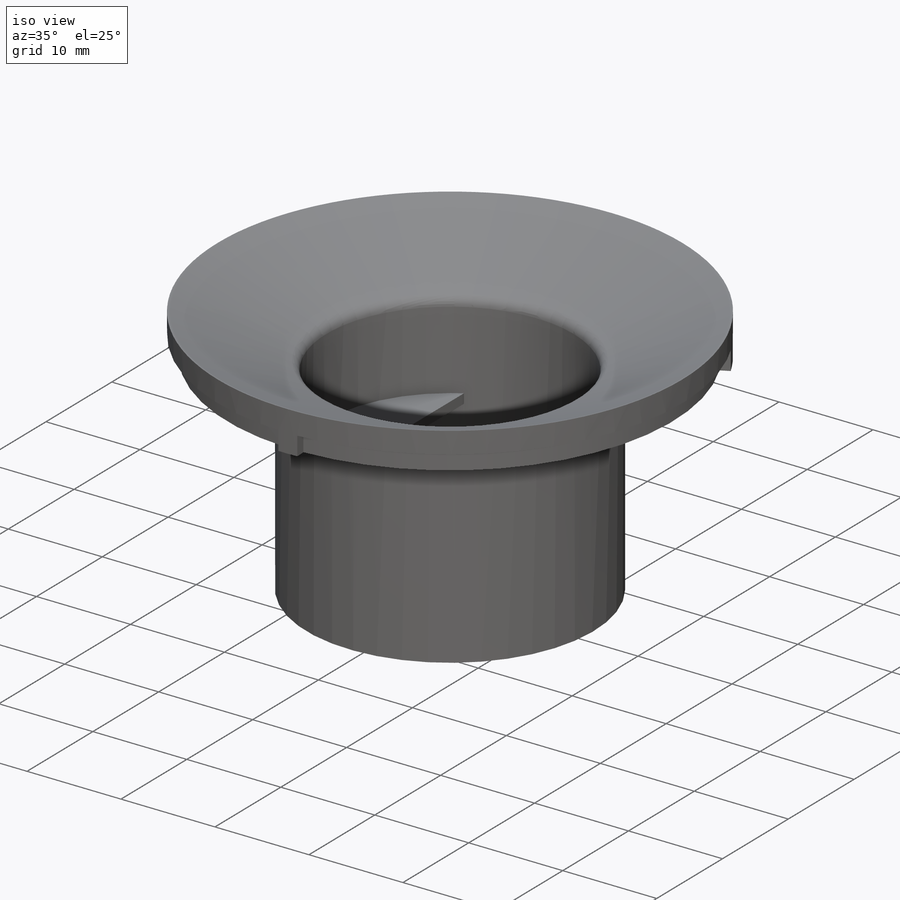
[diagram: iso view]
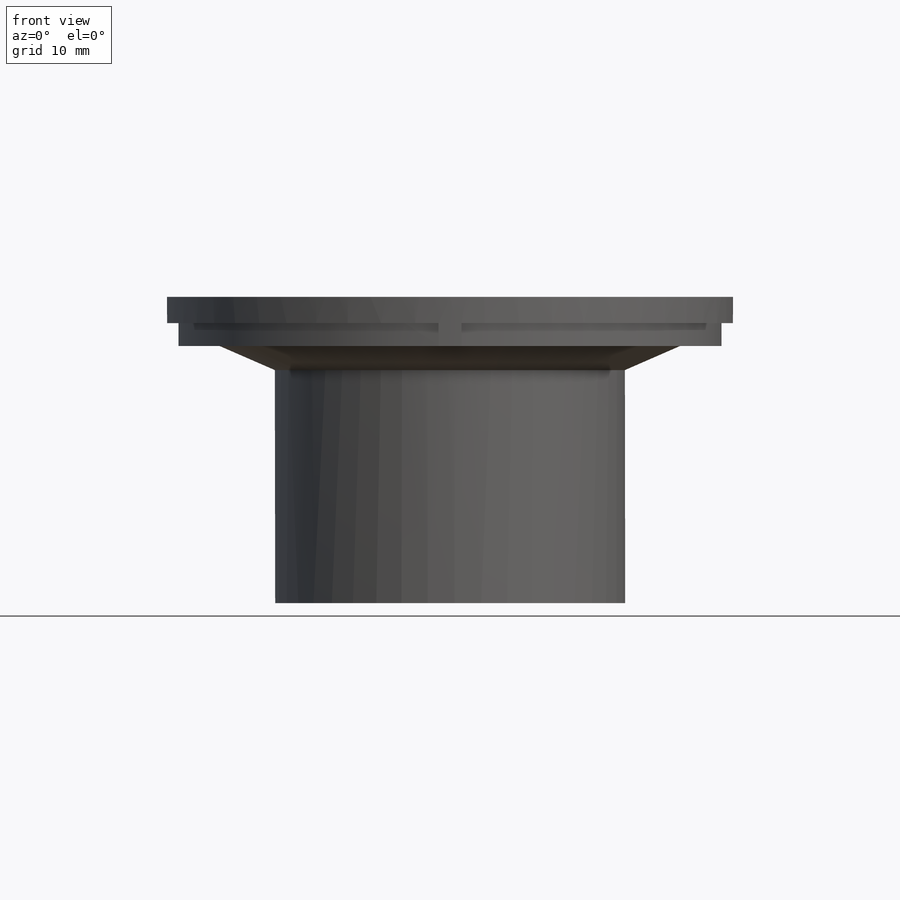
[diagram: front view]
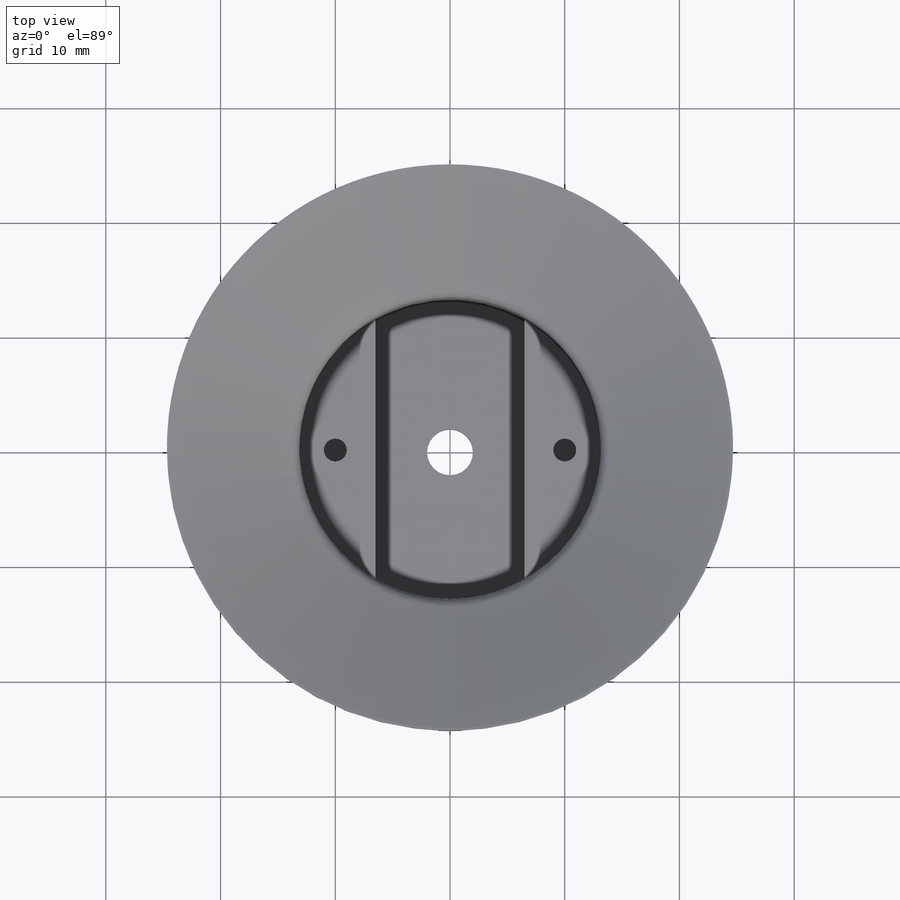
[diagram: top view]
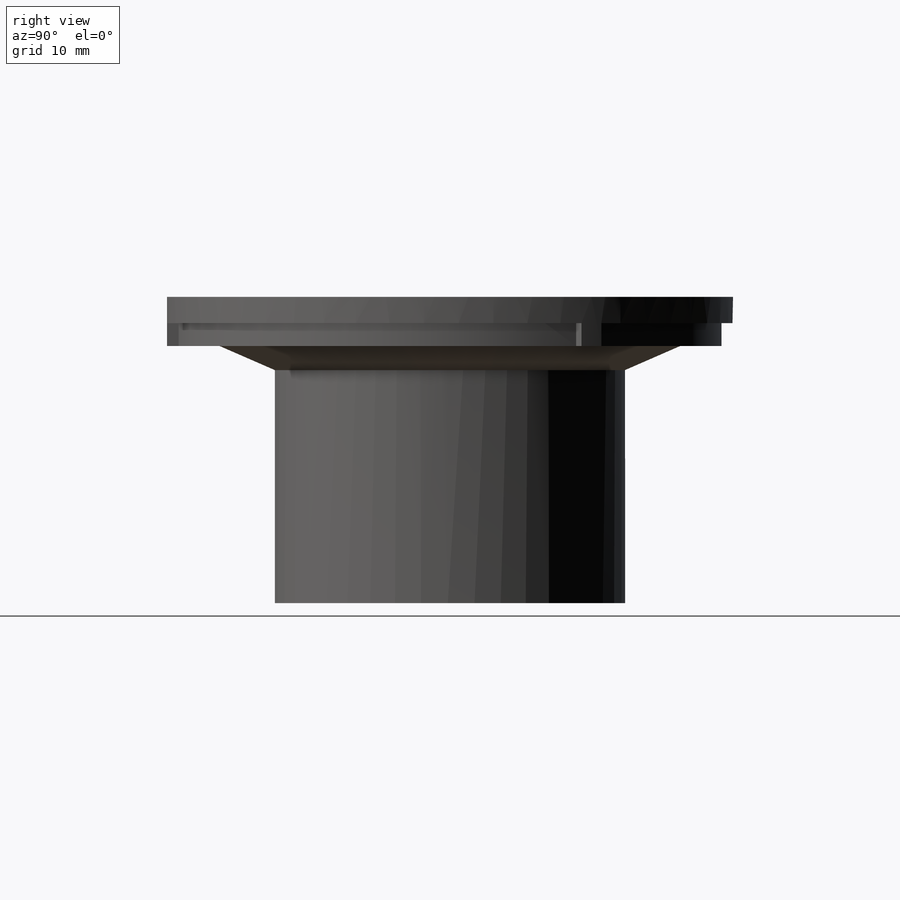
[diagram: right view]
SOLIDWORKS PART (.sldprt)
format: sldprt  version: not decoded by parser v0  size: 769,024 bytes
history: native  units: mm
features: sketch x6, plane x4, extrude x4, material x1, cut_revolve x1, pattern_circular x1, cut_extrude x1 (+11 scaffold rows collapsed)
feature tree (29):
  scaffold x11  (default folders/planes/origin — collapsed)
  material  "Material <not specified>"
  plane  "Plane1"
  plane  "Plane2"  Offset=20mm
  sketch  "Sketch1"
  extrude  "Boss-Extrude1"  Depth=2mm
  plane  "Plane3"
  sketch  "Sketch2"  dims[D1=2.0mm]
  cut_revolve  "Cut-Revolve1"  Angle=360deg
  sketch  "Sketch3"  dims[D1=1.0mm]
  extrude  "Boss-Extrude2"  Depth=2mm
  sketch  "Sketch4"  dims[D1=2.0mm]
  extrude  "Boss-Extrude3"  [1 undecoded]
  pattern_circular  "CirPattern1"  Count=3 Angle=360deg
  plane  "Plane4"
  sketch  "Sketch5"  dims[D2=2.0mm D4=2.0mm D1=13.0mm D3=3.5mm D5=3.5mm]
  extrude  "Boss-Extrude4"  Depth=1mm
  sketch  "Sketch6"  dims[D1=4.0mm]
  cut_extrude  "Cut-Extrude1"  [1 undecoded]
decode coverage: 10 of 13 modeling features carry decoded parameters
note: 2 parameter values undecoded
note: suppression state not decoded; provenance and decode notes live in map.json
